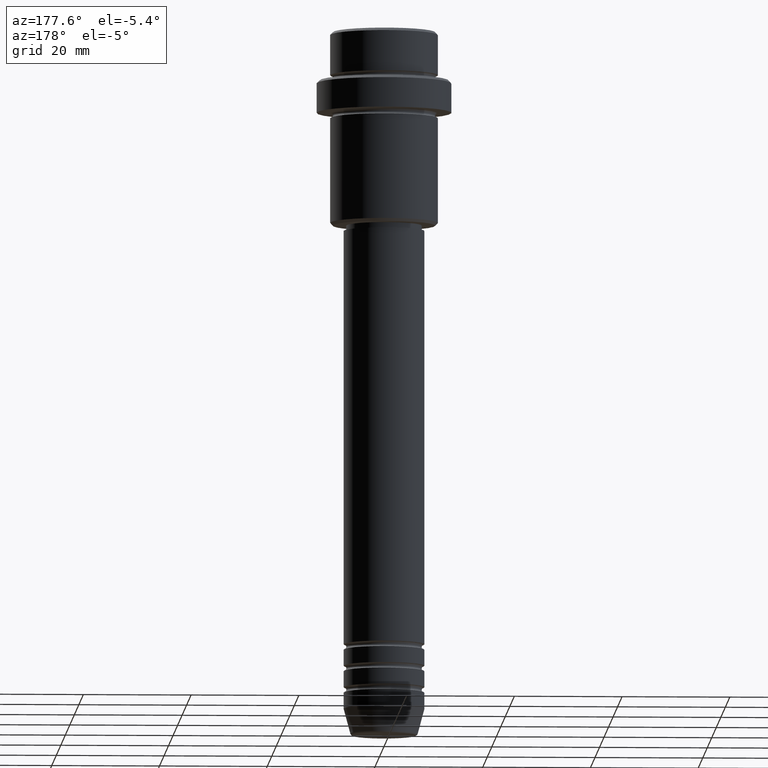
[diagram: clean part render]
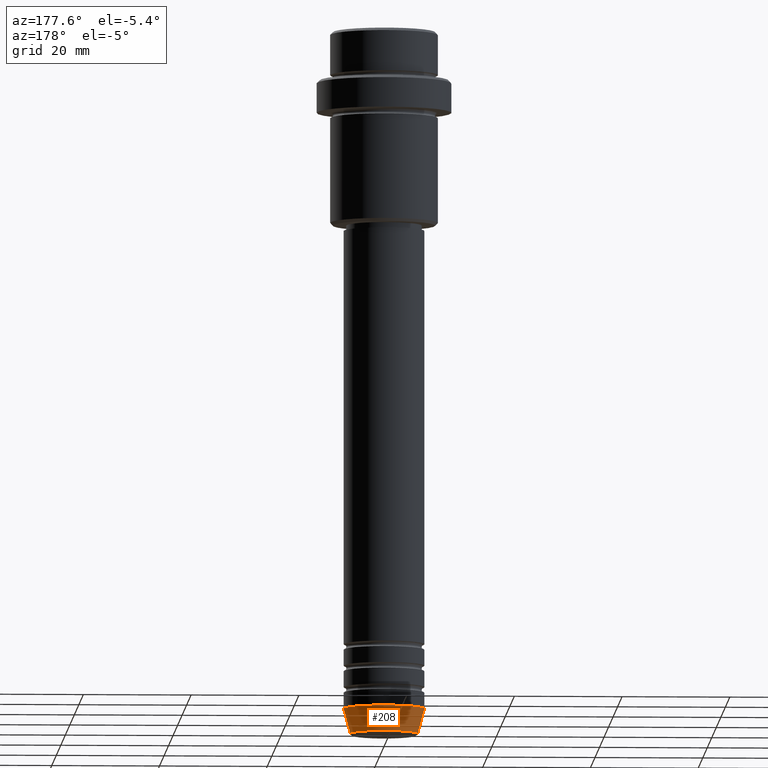
[diagram: same view with one face highlighted and labeled with its STEP entity id]
A machine part, auxiliary view. The second image highlights one B-rep face of the part: STEP entity #208.
In plain terms, the highlighted conical surface has half-angle 15 deg.
Its self-contained STEP definition (entity closure, byte-faithful):
#4 = VERTEX_POINT ( 'NONE', #725 ) ;
#22 = VECTOR ( 'NONE', #785, 1000.000000000000000 ) ;
#79 = CIRCLE ( 'NONE', #1105, 6.259553456999438659 ) ;
#191 = DIRECTION ( 'NONE',  ( 1.000000000000000000, 0.000000000000000000, 0.000000000000000000 ) ) ;
#208 = ADVANCED_FACE ( 'NONE', ( #1281 ), #1103, .T. ) ;
#277 = CARTESIAN_POINT ( 'NONE',  ( 7.500000000000000000, 0.000000000000000000, -126.0000000000000000 ) ) ;
#344 = ORIENTED_EDGE ( 'NONE', *, *, #590, .F. ) ;
#376 = LINE ( 'NONE', #277, #926 ) ;
#397 = EDGE_CURVE ( 'NONE', #4, #450, #1404, .T. ) ;
#428 = CARTESIAN_POINT ( 'NONE',  ( 0.000000000000000000, 0.000000000000000000, -126.0000000000000000 ) ) ;
#450 = VERTEX_POINT ( 'NONE', #1246 ) ;
#472 = AXIS2_PLACEMENT_3D ( 'NONE', #733, #842, #191 ) ;
#511 = CARTESIAN_POINT ( 'NONE',  ( 0.000000000000000000, 0.000000000000000000, -130.6294095225512422 ) ) ;
#530 = EDGE_CURVE ( 'NONE', #894, #1046, #376, .T. ) ;
#579 = CARTESIAN_POINT ( 'NONE',  ( 7.500000000000000000, 0.000000000000000000, -126.0000000000000000 ) ) ;
#590 = EDGE_CURVE ( 'NONE', #1046, #450, #963, .T. ) ;
#595 = CARTESIAN_POINT ( 'NONE',  ( 6.259553456999438659, 0.000000000000000000, -130.6294095225512422 ) ) ;
#607 = ORIENTED_EDGE ( 'NONE', *, *, #530, .F. ) ;
#627 = EDGE_CURVE ( 'NONE', #894, #4, #79, .T. ) ;
#644 = DIRECTION ( 'NONE',  ( 1.000000000000000000, 0.000000000000000000, 0.000000000000000000 ) ) ;
#669 = AXIS2_PLACEMENT_3D ( 'NONE', #428, #861, #644 ) ;
#696 = ORIENTED_EDGE ( 'NONE', *, *, #397, .T. ) ;
#725 = CARTESIAN_POINT ( 'NONE',  ( -6.259553456999438659, 8.425296549405629486E-16, -130.6294095225512422 ) ) ;
#733 = CARTESIAN_POINT ( 'NONE',  ( 0.000000000000000000, 0.000000000000000000, -126.0000000000000000 ) ) ;
#737 = DIRECTION ( 'NONE',  ( 1.000000000000000000, 0.000000000000000000, 0.000000000000000000 ) ) ;
#785 = DIRECTION ( 'NONE',  ( -0.2588190451025213501, 3.169619151431772337E-17, 0.9659258262890680902 ) ) ;
#842 = DIRECTION ( 'NONE',  ( -0.000000000000000000, -0.000000000000000000, 1.000000000000000000 ) ) ;
#848 = DIRECTION ( 'NONE',  ( -0.000000000000000000, -0.000000000000000000, 1.000000000000000000 ) ) ;
#861 = DIRECTION ( 'NONE',  ( -0.000000000000000000, -0.000000000000000000, 1.000000000000000000 ) ) ;
#890 = CARTESIAN_POINT ( 'NONE',  ( -7.500000000000000000, 9.184850993605147944E-16, -126.0000000000000000 ) ) ;
#891 = EDGE_LOOP ( 'NONE', ( #1290, #696, #344, #607 ) ) ;
#894 = VERTEX_POINT ( 'NONE', #595 ) ;
#926 = VECTOR ( 'NONE', #1327, 1000.000000000000000 ) ;
#963 = CIRCLE ( 'NONE', #472, 7.500000000000000000 ) ;
#1046 = VERTEX_POINT ( 'NONE', #579 ) ;
#1103 = CONICAL_SURFACE ( 'NONE', #669, 7.500000000000000000, 0.2617993877991500740 ) ;
#1105 = AXIS2_PLACEMENT_3D ( 'NONE', #511, #848, #737 ) ;
#1246 = CARTESIAN_POINT ( 'NONE',  ( -7.500000000000000000, 9.184850993605147944E-16, -126.0000000000000000 ) ) ;
#1281 = FACE_OUTER_BOUND ( 'NONE', #891, .T. ) ;
#1290 = ORIENTED_EDGE ( 'NONE', *, *, #627, .T. ) ;
#1327 = DIRECTION ( 'NONE',  ( 0.2588190451025213501, 0.000000000000000000, 0.9659258262890680902 ) ) ;
#1404 = LINE ( 'NONE', #890, #22 ) ;